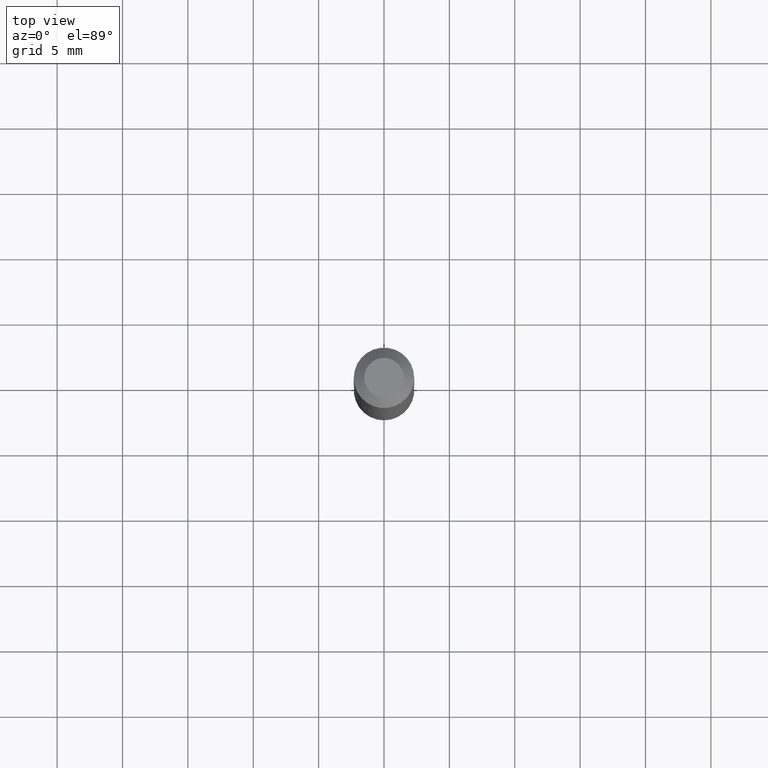
[diagram: clean part render]
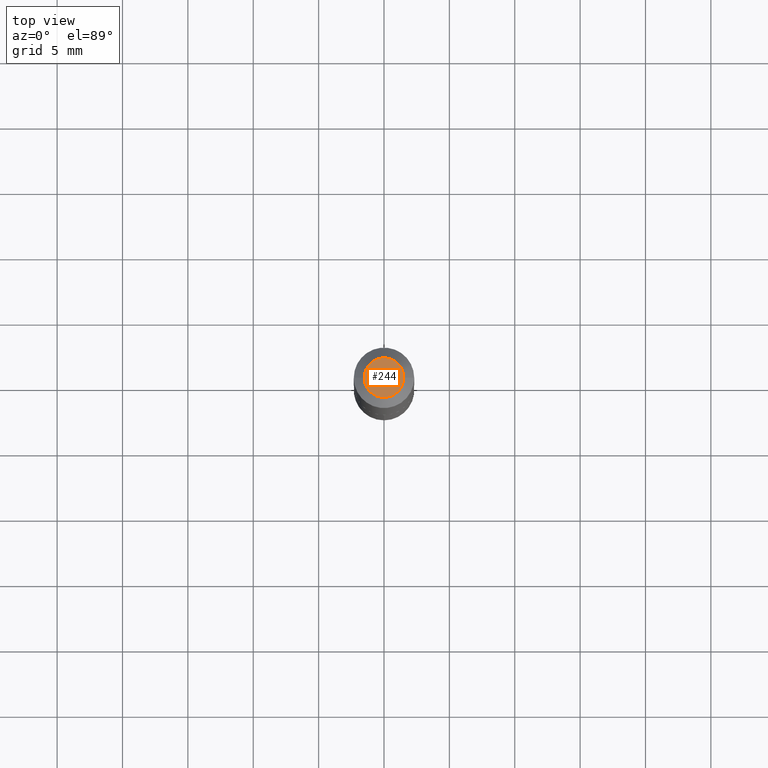
[diagram: same view with one face highlighted and labeled with its STEP entity id]
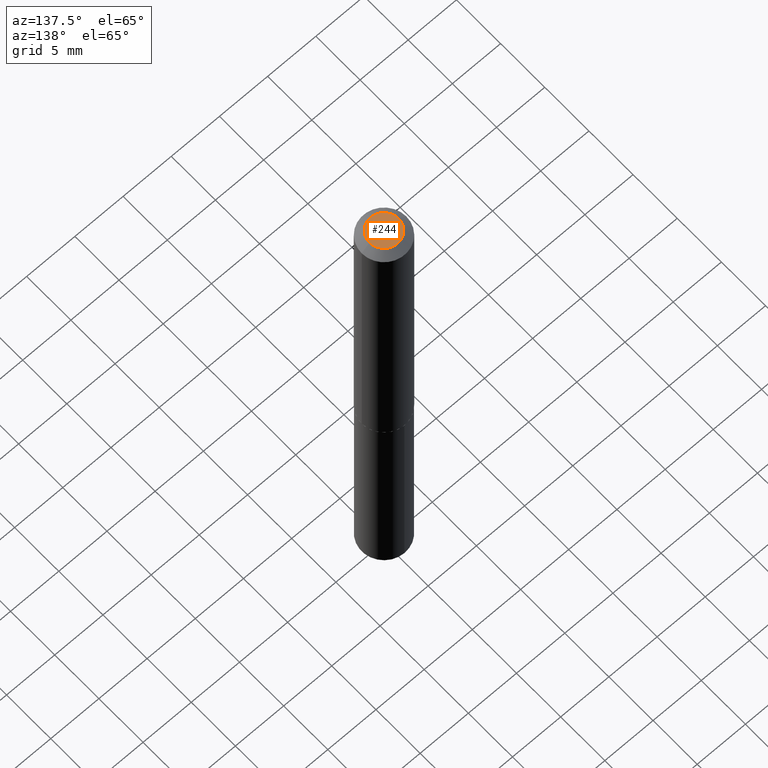
[diagram: same view with one face highlighted and labeled with its STEP entity id]
A machine part, top view. The second image highlights one B-rep face of the part: STEP entity #244.
A second angle (auxiliary view) of the same face is appended — the face is thin or edge-on in the first view.
In plain terms, the highlighted planar face has unit normal (0, -0, -1).
Its self-contained STEP definition (entity closure, byte-faithful):
#7 = AXIS2_PLACEMENT_3D ( 'NONE', #278, #156, #255 ) ;
#9 = VERTEX_POINT ( 'NONE', #340 ) ;
#47 = CARTESIAN_POINT ( 'NONE',  ( 2.246126659432003351E-48, -3.206873584422742284E-34, -9.184850993605184086E-20 ) ) ;
#53 = CARTESIAN_POINT ( 'NONE',  ( 0.05974999999999999756, -5.716644325014536685E-16, -1.836970198686465412E-19 ) ) ;
#54 = CIRCLE ( 'NONE', #260, 0.05974999999999999756 ) ;
#57 = EDGE_LOOP ( 'NONE', ( #361, #363 ) ) ;
#78 = AXIS2_PLACEMENT_3D ( 'NONE', #47, #113, #176 ) ;
#103 = EDGE_CURVE ( 'NONE', #242, #9, #220, .T. ) ;
#113 = DIRECTION ( 'NONE',  ( 2.438088387897960049E-29, -3.491481338843145188E-15, -1.000000000000000000 ) ) ;
#119 = FACE_OUTER_BOUND ( 'NONE', #57, .T. ) ;
#156 = DIRECTION ( 'NONE',  ( -2.445468806185136597E-29, 3.491481338843145583E-15, 1.000000000000000000 ) ) ;
#176 = DIRECTION ( 'NONE',  ( -1.000000000000000000, 6.982962677686265922E-15, -4.876176775795935793E-29 ) ) ;
#220 = CIRCLE ( 'NONE', #7, 0.05974999999999999756 ) ;
#228 = DIRECTION ( 'NONE',  ( -2.445468806185136597E-29, 3.491481338843145583E-15, 1.000000000000000000 ) ) ;
#241 = PLANE ( 'NONE',  #78 ) ;
#242 = VERTEX_POINT ( 'NONE', #53 ) ;
#244 = ADVANCED_FACE ( 'NONE', ( #119 ), #241, .F. ) ;
#254 = DIRECTION ( 'NONE',  ( 1.000000000000000000, -6.982962677686266711E-15, 4.876164187836129365E-29 ) ) ;
#255 = DIRECTION ( 'NONE',  ( 1.000000000000000000, -6.982962677686266711E-15, 4.876164187836129365E-29 ) ) ;
#260 = AXIS2_PLACEMENT_3D ( 'NONE', #277, #228, #254 ) ;
#277 = CARTESIAN_POINT ( 'NONE',  ( 4.492253318864006702E-48, -6.413747168845484567E-34, -1.836970198721036817E-19 ) ) ;
#278 = CARTESIAN_POINT ( 'NONE',  ( 4.492253318864006702E-48, -6.413747168845484567E-34, -1.836970198721036817E-19 ) ) ;
#340 = CARTESIAN_POINT ( 'NONE',  ( -0.05974999999999999756, 4.717864159111778069E-16, -1.836970198752120845E-19 ) ) ;
#343 = EDGE_CURVE ( 'NONE', #9, #242, #54, .T. ) ;
#361 = ORIENTED_EDGE ( 'NONE', *, *, #343, .T. ) ;
#363 = ORIENTED_EDGE ( 'NONE', *, *, #103, .T. ) ;